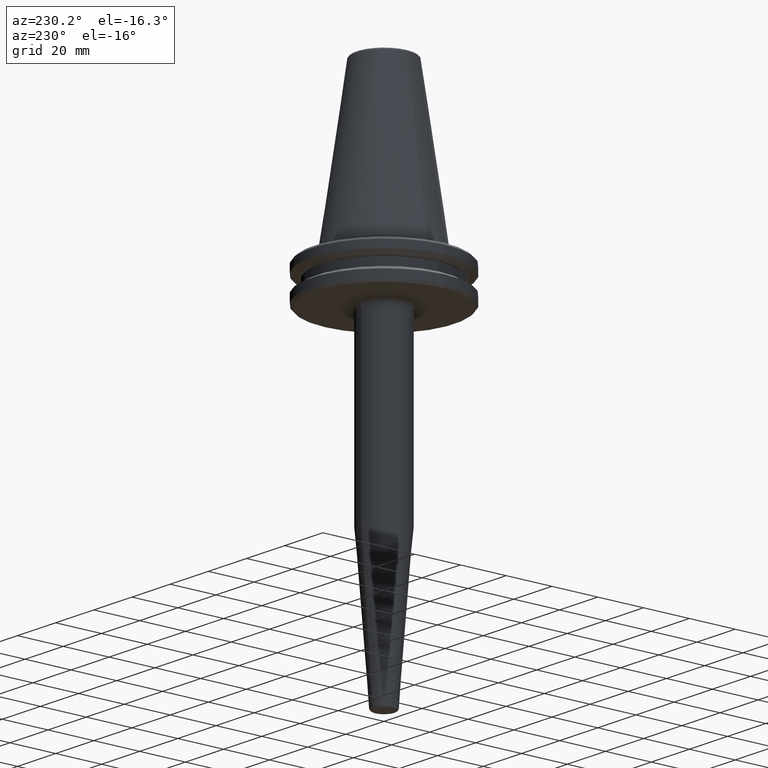
[diagram: clean part render]
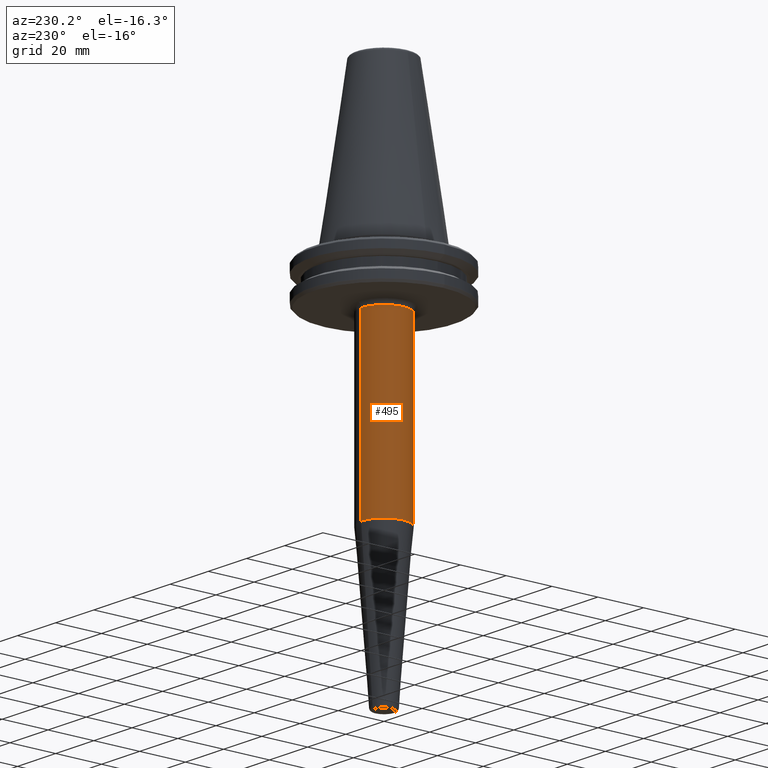
[diagram: same view with one face highlighted and labeled with its STEP entity id]
A machine part, auxiliary view. The second image highlights one B-rep face of the part: STEP entity #495.
In plain terms, the highlighted cylindrical surface (edge-blend (fillet) strip) has radius 10 mm, axis along (-0, 0, -1).
Its self-contained STEP definition (entity closure, byte-faithful):
#2 = EDGE_LOOP ( 'NONE', ( #1212, #825, #607, #979 ) ) ;
#54 = VERTEX_POINT ( 'NONE', #1194 ) ;
#82 = CARTESIAN_POINT ( 'NONE',  ( 0.0000000000000000000, -1.701835490922485000E-014, -20.98284271247460700 ) ) ;
#84 = EDGE_CURVE ( 'NONE', #472, #995, #359, .T. ) ;
#105 = VECTOR ( 'NONE', #912, 1000.000000000000000 ) ;
#157 = DIRECTION ( 'NONE',  ( -0.0000000000000000000, 1.256330602389183300E-016, -1.000000000000000000 ) ) ;
#179 = CYLINDRICAL_SURFACE ( 'NONE', #470, 10.00000000000001200 ) ;
#180 = DIRECTION ( 'NONE',  ( 0.0000000000000000000, 1.000000000000000000, 0.0000000000000000000 ) ) ;
#217 = FACE_OUTER_BOUND ( 'NONE', #2, .T. ) ;
#252 = CARTESIAN_POINT ( 'NONE',  ( 1.224646799147354600E-015, -10.00000000000001200, -160.0000000000000000 ) ) ;
#314 = VERTEX_POINT ( 'NONE', #857 ) ;
#359 = LINE ( 'NONE', #252, #105 ) ;
#395 = DIRECTION ( 'NONE',  ( 0.0000000000000000000, 1.000000000000000000, 0.0000000000000000000 ) ) ;
#401 = DIRECTION ( 'NONE',  ( -0.0000000000000000000, 1.256330602389183300E-016, -1.000000000000000000 ) ) ;
#420 = EDGE_CURVE ( 'NONE', #995, #54, #1002, .T. ) ;
#431 = CARTESIAN_POINT ( 'NONE',  ( 0.0000000000000000000, 10.00000000000001200, -160.0000000000000000 ) ) ;
#470 = AXIS2_PLACEMENT_3D ( 'NONE', #1244, #401, #395 ) ;
#472 = VERTEX_POINT ( 'NONE', #724 ) ;
#495 = ADVANCED_FACE ( 'NONE', ( #217 ), #179, .T. ) ;
#532 = VECTOR ( 'NONE', #1096, 1000.000000000000000 ) ;
#607 = ORIENTED_EDGE ( 'NONE', *, *, #1165, .T. ) ;
#660 = CARTESIAN_POINT ( 'NONE',  ( 0.0000000000000000000, -10.00000000000001600, -95.54743541484747000 ) ) ;
#666 = EDGE_CURVE ( 'NONE', #472, #314, #925, .T. ) ;
#724 = CARTESIAN_POINT ( 'NONE',  ( 1.224646799147355800E-015, -10.00000000000003400, -20.98284271247460700 ) ) ;
#753 = DIRECTION ( 'NONE',  ( -0.0000000000000000000, 1.256330602389183300E-016, -1.000000000000000000 ) ) ;
#807 = AXIS2_PLACEMENT_3D ( 'NONE', #821, #157, #1006 ) ;
#821 = CARTESIAN_POINT ( 'NONE',  ( 0.0000000000000000000, -7.650576942557227800E-015, -95.54743541484747000 ) ) ;
#825 = ORIENTED_EDGE ( 'NONE', *, *, #666, .T. ) ;
#857 = CARTESIAN_POINT ( 'NONE',  ( 0.0000000000000000000, 9.999999999999998200, -20.98284271247460700 ) ) ;
#883 = AXIS2_PLACEMENT_3D ( 'NONE', #82, #753, #180 ) ;
#912 = DIRECTION ( 'NONE',  ( -0.0000000000000000000, 1.256330602389183300E-016, -1.000000000000000000 ) ) ;
#925 = CIRCLE ( 'NONE', #883, 10.00000000000001600 ) ;
#979 = ORIENTED_EDGE ( 'NONE', *, *, #420, .F. ) ;
#995 = VERTEX_POINT ( 'NONE', #660 ) ;
#1002 = CIRCLE ( 'NONE', #807, 10.00000000000000900 ) ;
#1006 = DIRECTION ( 'NONE',  ( 0.0000000000000000000, 1.000000000000000000, 0.0000000000000000000 ) ) ;
#1028 = LINE ( 'NONE', #431, #532 ) ;
#1096 = DIRECTION ( 'NONE',  ( -0.0000000000000000000, 1.256330602389183300E-016, -1.000000000000000000 ) ) ;
#1165 = EDGE_CURVE ( 'NONE', #314, #54, #1028, .T. ) ;
#1194 = CARTESIAN_POINT ( 'NONE',  ( 1.224646799147354200E-015, 10.00000000000000200, -95.54743541484747000 ) ) ;
#1212 = ORIENTED_EDGE ( 'NONE', *, *, #84, .F. ) ;
#1244 = CARTESIAN_POINT ( 'NONE',  ( 0.0000000000000000000, 4.467959865220142400E-016, -160.0000000000000000 ) ) ;